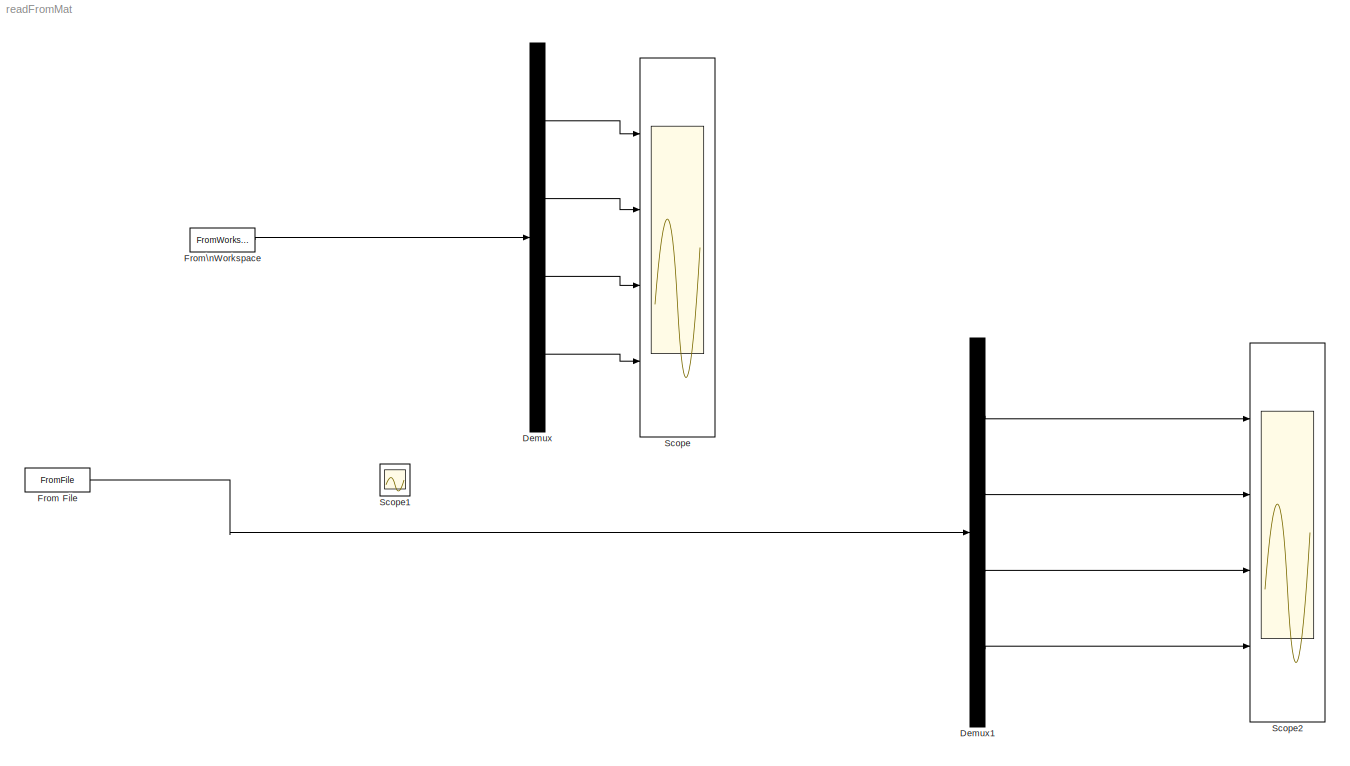
MODEL readFromMat
KIND model
BLOCK [Demux] Demux
  DisplayOption = bar
  Ports = [1, 4]
  SID = 27
BLOCK [Demux] Demux1
  DisplayOption = bar
  Ports = [1, 4]
  SID = 31
BLOCK [FromFile] From File
  FileName = DynWCalc
  SID = 29
  SampleTime = 0
BLOCK [FromWorkspace] From\nWorkspace
  SID = 24
  SampleTime = 0
  VariableName = ans
  ZeroCross = on
BLOCK [Scope] Scope
  Floating = off
  NumInputPorts = 4
  Ports = [4]
  SID = 23
  YMax = 5~5~5~5
  YMin = -5~-5~-5~-5
BLOCK [Scope] Scope1
  Floating = off
  NumInputPorts = 1
  Ports = [1]
  SID = 30
  SaveName = ScopeData1
BLOCK [Scope] Scope2
  Floating = off
  NumInputPorts = 4
  Ports = [4]
  SID = 32
  SaveName = ScopeData2
  YMax = 5~5~5~5
  YMin = -5~-5~-5~-5
LINE Demux1:1 -> Scope2:1
LINE Demux1:2 -> Scope2:2
LINE Demux1:3 -> Scope2:3
LINE Demux1:4 -> Scope2:4
LINE Demux:1 -> Scope:1
LINE Demux:2 -> Scope:2
LINE Demux:3 -> Scope:3
LINE Demux:4 -> Scope:4
LINE From File:1 -> Demux1:1
LINE From\nWorkspace:1 -> Demux:1
